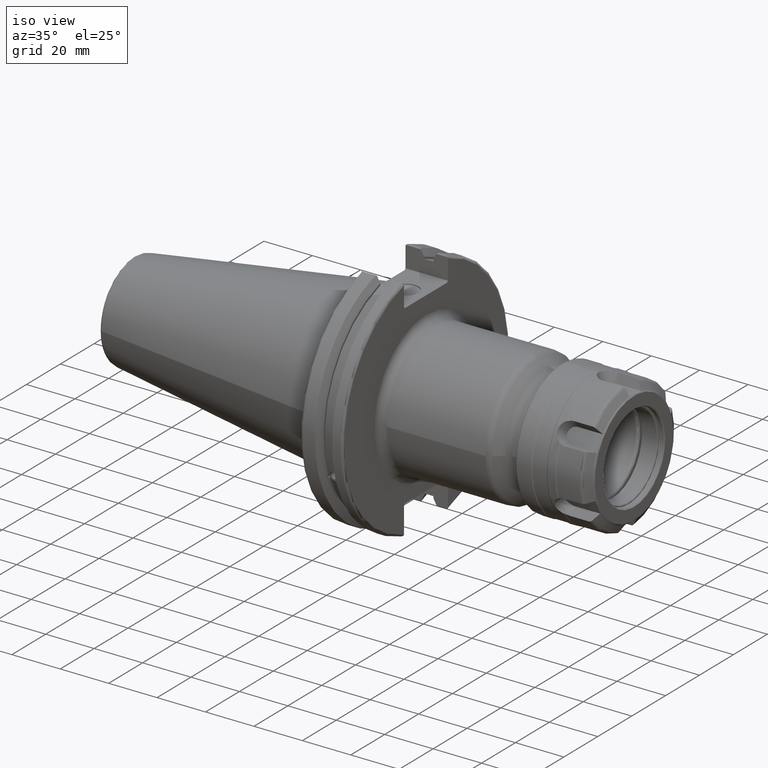
[diagram: clean part render]
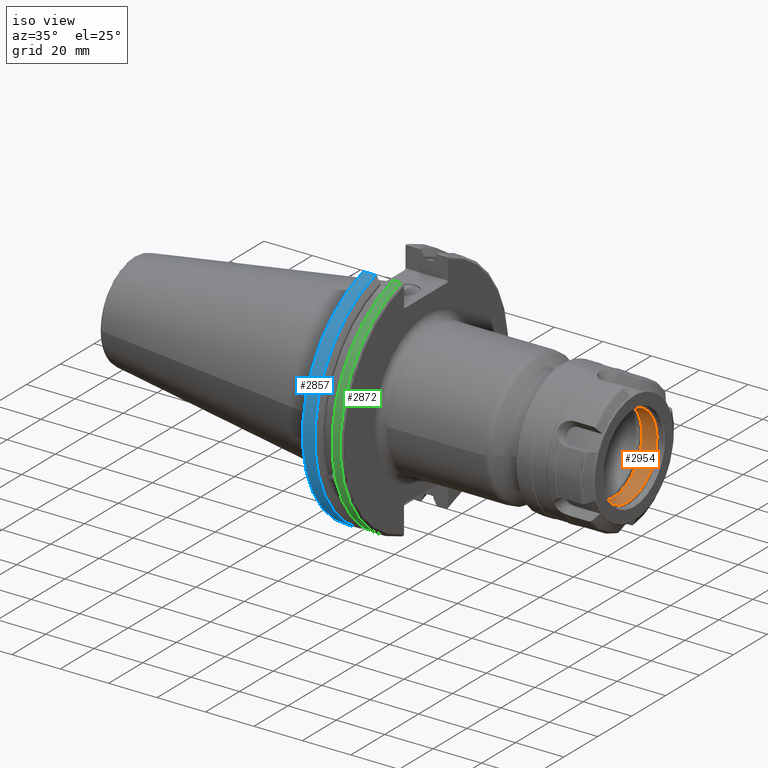
[diagram: same view with three faces highlighted in distinct colors, each labeled with its STEP entity id]
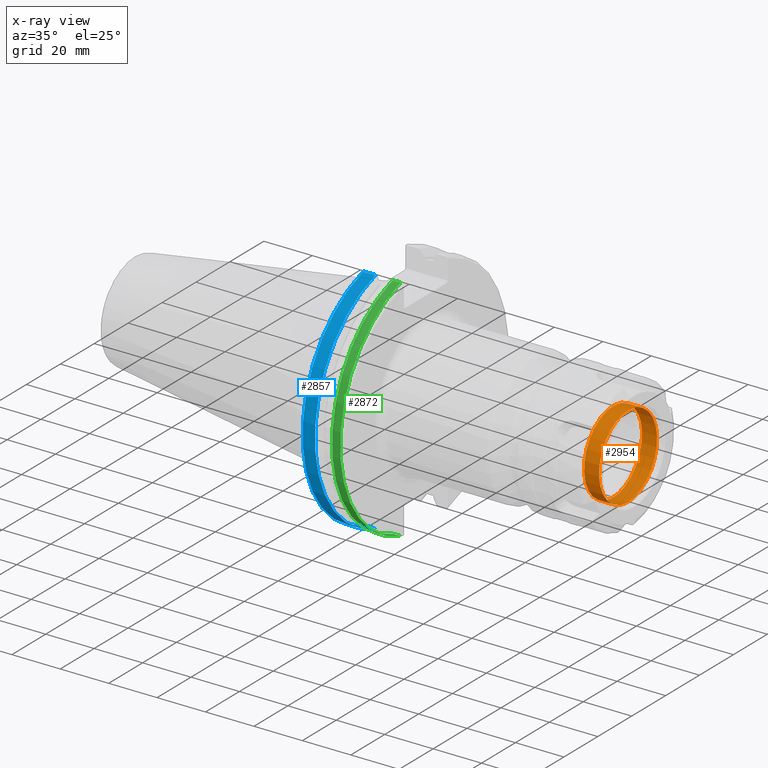
[diagram: x-ray of the same camera — body ghosted, the three highlighted faces saturated]
A machine part, iso view with three faces highlighted in distinct colors.
The next image is the same camera in x-ray (body ghosted, the three faces saturated) — at least one of them is partly hidden behind the body in this view.
Their STEP definitions:

[orange] entity #2954 — the highlighted cylindrical surface (bore or boss wall) has radius 17.1 mm, axis along (1, -0, -0).
#198=CYLINDRICAL_SURFACE('',#3337,17.1);
#342=LINE('',#5855,#491);
#491=VECTOR('',#4121,17.1);
#779=FACE_OUTER_BOUND('',#965,.T.);
#965=EDGE_LOOP('',(#2707,#2708,#2709,#2710,#2711,#2712));
#1132=CIRCLE('',#3335,17.1);
#1133=CIRCLE('',#3336,17.1);
#1134=CIRCLE('',#3338,17.1);
#1135=CIRCLE('',#3339,17.1);
#1429=VERTEX_POINT('',#5845);
#1430=VERTEX_POINT('',#5847);
#1431=VERTEX_POINT('',#5851);
#1432=VERTEX_POINT('',#5852);
#1863=EDGE_CURVE('',#1429,#1430,#1132,.T.);
#1864=EDGE_CURVE('',#1430,#1429,#1133,.T.);
#1865=EDGE_CURVE('',#1431,#1432,#1134,.T.);
#1866=EDGE_CURVE('',#1432,#1431,#1135,.T.);
#1867=EDGE_CURVE('',#1432,#1430,#342,.T.);
#2707=ORIENTED_EDGE('',*,*,#1865,.F.);
#2708=ORIENTED_EDGE('',*,*,#1866,.F.);
#2709=ORIENTED_EDGE('',*,*,#1867,.T.);
#2710=ORIENTED_EDGE('',*,*,#1863,.F.);
#2711=ORIENTED_EDGE('',*,*,#1864,.F.);
#2712=ORIENTED_EDGE('',*,*,#1867,.F.);
#2954=ADVANCED_FACE('',(#779),#198,.F.);
#3335=AXIS2_PLACEMENT_3D('',#5848,#4111,#4112);
#3336=AXIS2_PLACEMENT_3D('',#5849,#4113,#4114);
#3337=AXIS2_PLACEMENT_3D('',#5850,#4115,#4116);
#3338=AXIS2_PLACEMENT_3D('',#5853,#4117,#4118);
#3339=AXIS2_PLACEMENT_3D('',#5854,#4119,#4120);
#4111=DIRECTION('center_axis',(1.,0.,0.));
#4112=DIRECTION('ref_axis',(0.,-1.,0.));
#4113=DIRECTION('center_axis',(1.,0.,0.));
#4114=DIRECTION('ref_axis',(0.,-1.,0.));
#4115=DIRECTION('center_axis',(1.,0.,0.));
#4116=DIRECTION('ref_axis',(0.,1.,0.));
#4117=DIRECTION('center_axis',(-1.,0.,0.));
#4118=DIRECTION('ref_axis',(0.,-1.,0.));
#4119=DIRECTION('center_axis',(-1.,0.,0.));
#4120=DIRECTION('ref_axis',(0.,-1.,0.));
#4121=DIRECTION('',(-1.,0.,0.));
#5845=CARTESIAN_POINT('',(21.3,17.1,2.09414602654197E-15));
#5847=CARTESIAN_POINT('',(21.3,-17.1,-2.09414602654197E-15));
#5848=CARTESIAN_POINT('Origin',(21.3,0.,0.));
#5849=CARTESIAN_POINT('Origin',(21.3,0.,0.));
#5850=CARTESIAN_POINT('Origin',(24.4,0.,0.));
#5851=CARTESIAN_POINT('',(27.5,17.1,-2.09414602654197E-15));
#5852=CARTESIAN_POINT('',(27.5,-17.1,-2.09414602654197E-15));
#5853=CARTESIAN_POINT('Origin',(27.5,0.,0.));
#5854=CARTESIAN_POINT('Origin',(27.5,0.,0.));
#5855=CARTESIAN_POINT('',(24.4,-17.1,-2.09414602654197E-15));

[blue] entity #2857 — the highlighted cylindrical surface (partial cylindrical patch) has radius 49.2125 mm, axis along (1, 0, 0).
#180=CYLINDRICAL_SURFACE('',#3156,49.2125);
#268=LINE('',#5011,#417);
#269=LINE('',#5017,#418);
#417=VECTOR('',#3679,10.);
#418=VECTOR('',#3682,10.);
#682=FACE_OUTER_BOUND('',#860,.T.);
#860=EDGE_LOOP('',(#2195,#2196,#2197,#2198));
#1049=CIRCLE('',#3153,49.2125);
#1051=CIRCLE('',#3157,49.2125);
#1279=VERTEX_POINT('',#4989);
#1280=VERTEX_POINT('',#4998);
#1281=VERTEX_POINT('',#5010);
#1282=VERTEX_POINT('',#5016);
#1622=EDGE_CURVE('',#1279,#1280,#1049,.T.);
#1625=EDGE_CURVE('',#1280,#1281,#268,.T.);
#1627=EDGE_CURVE('',#1282,#1279,#269,.T.);
#1628=EDGE_CURVE('',#1281,#1282,#1051,.T.);
#2195=ORIENTED_EDGE('',*,*,#1622,.F.);
#2196=ORIENTED_EDGE('',*,*,#1627,.F.);
#2197=ORIENTED_EDGE('',*,*,#1628,.F.);
#2198=ORIENTED_EDGE('',*,*,#1625,.F.);
#2857=ADVANCED_FACE('',(#682),#180,.T.);
#3153=AXIS2_PLACEMENT_3D('',#4999,#3673,#3674);
#3156=AXIS2_PLACEMENT_3D('',#5015,#3680,#3681);
#3157=AXIS2_PLACEMENT_3D('',#5018,#3683,#3684);
#3673=DIRECTION('center_axis',(-1.,0.,0.));
#3674=DIRECTION('ref_axis',(0.,-1.,1.60812264967664E-16));
#3679=DIRECTION('',(1.,0.,0.));
#3680=DIRECTION('center_axis',(1.,0.,0.));
#3681=DIRECTION('ref_axis',(0.,-1.,1.22464679914735E-16));
#3682=DIRECTION('',(-1.,0.,0.));
#3683=DIRECTION('center_axis',(1.,0.,0.));
#3684=DIRECTION('ref_axis',(0.,0.,-1.));
#4989=CARTESIAN_POINT('',(2.5,-13.4317035994433,-47.3440544806494));
#4998=CARTESIAN_POINT('',(2.5,-13.4317035994433,47.3440544806494));
#4999=CARTESIAN_POINT('Origin',(2.5,0.,0.));
#5010=CARTESIAN_POINT('',(7.60799096595127,-13.4317035994433,47.3440544806494));
#5011=CARTESIAN_POINT('',(4.55399548297564,-13.4317035994433,47.3440544806494));
#5015=CARTESIAN_POINT('Origin',(4.55399548297564,0.,0.));
#5016=CARTESIAN_POINT('',(7.60799096595127,-13.4317035994433,-47.3440544806494));
#5017=CARTESIAN_POINT('',(4.55399548297564,-13.4317035994433,-47.3440544806494));
#5018=CARTESIAN_POINT('Origin',(7.60799096595127,0.,0.));

[green] entity #2872 — the highlighted cylindrical surface (partial cylindrical patch) has radius 49.2125 mm, axis along (1, 0, 0).
#181=CYLINDRICAL_SURFACE('',#3181,49.2125);
#291=LINE('',#5119,#440);
#292=LINE('',#5121,#441);
#440=VECTOR('',#3752,10.);
#441=VECTOR('',#3755,10.);
#697=FACE_OUTER_BOUND('',#878,.T.);
#878=EDGE_LOOP('',(#2281,#2282,#2283,#2284));
#1028=CIRCLE('',#3107,49.2125);
#1048=CIRCLE('',#3149,49.2125);
#1216=VERTEX_POINT('',#4589);
#1217=VERTEX_POINT('',#4593);
#1266=VERTEX_POINT('',#4927);
#1267=VERTEX_POINT('',#4936);
#1534=EDGE_CURVE('',#1217,#1216,#1028,.T.);
#1604=EDGE_CURVE('',#1266,#1267,#1048,.T.);
#1666=EDGE_CURVE('',#1267,#1216,#291,.T.);
#1667=EDGE_CURVE('',#1217,#1266,#292,.T.);
#2281=ORIENTED_EDGE('',*,*,#1604,.F.);
#2282=ORIENTED_EDGE('',*,*,#1667,.F.);
#2283=ORIENTED_EDGE('',*,*,#1534,.T.);
#2284=ORIENTED_EDGE('',*,*,#1666,.F.);
#2872=ADVANCED_FACE('',(#697),#181,.T.);
#3107=AXIS2_PLACEMENT_3D('',#4594,#3547,#3548);
#3149=AXIS2_PLACEMENT_3D('',#4937,#3654,#3655);
#3181=AXIS2_PLACEMENT_3D('',#5120,#3753,#3754);
#3547=DIRECTION('center_axis',(1.,0.,0.));
#3548=DIRECTION('ref_axis',(0.,0.,-1.));
#3654=DIRECTION('center_axis',(1.,0.,0.));
#3655=DIRECTION('ref_axis',(0.,-1.,1.60812264967664E-16));
#3752=DIRECTION('',(-1.,0.,0.));
#3753=DIRECTION('center_axis',(1.,0.,0.));
#3754=DIRECTION('ref_axis',(0.,-1.,1.22464679914735E-16));
#3755=DIRECTION('',(1.,0.,0.));
#4589=CARTESIAN_POINT('',(14.6602090340487,-13.4317035994433,-47.3440544806494));
#4593=CARTESIAN_POINT('',(14.6602090340487,-13.4317035994433,47.3440544806494));
#4594=CARTESIAN_POINT('Origin',(14.6602090340487,0.,0.));
#4927=CARTESIAN_POINT('',(18.05,-13.4317035994433,47.3440544806494));
#4936=CARTESIAN_POINT('',(18.05,-13.4317035994433,-47.3440544806494));
#4937=CARTESIAN_POINT('Origin',(18.05,0.,0.));
#5119=CARTESIAN_POINT('',(16.8551045170244,-13.4317035994433,-47.3440544806494));
#5120=CARTESIAN_POINT('Origin',(16.8551045170244,0.,0.));
#5121=CARTESIAN_POINT('',(16.8551045170244,-13.4317035994433,47.3440544806494));